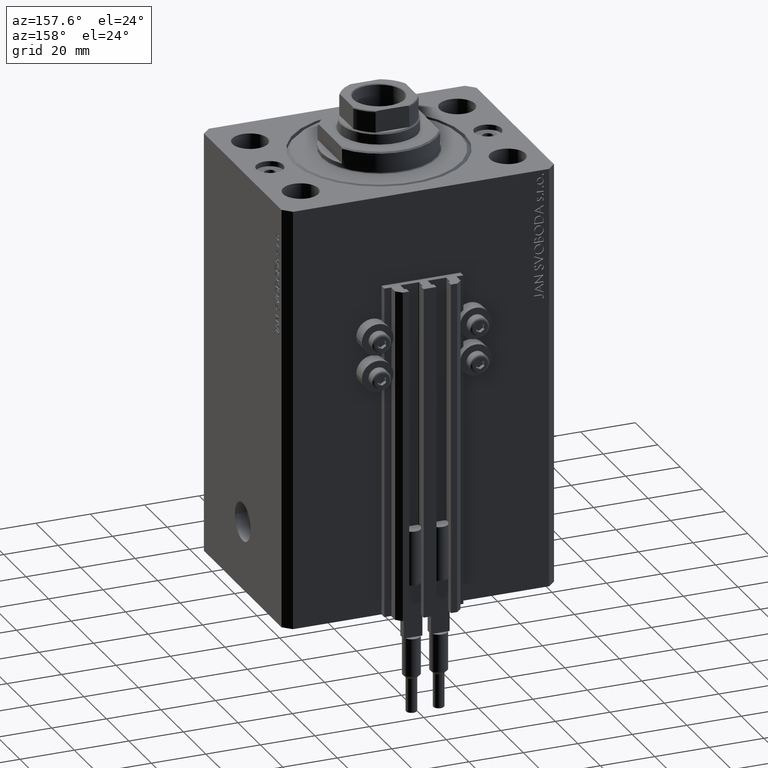
[diagram: clean part render]
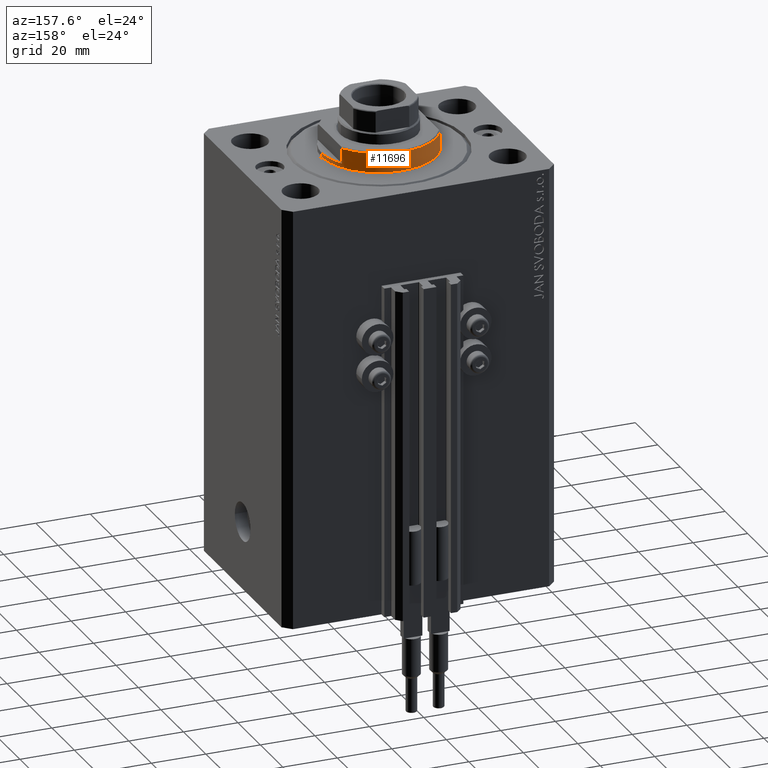
[diagram: same view with one face highlighted and labeled with its STEP entity id]
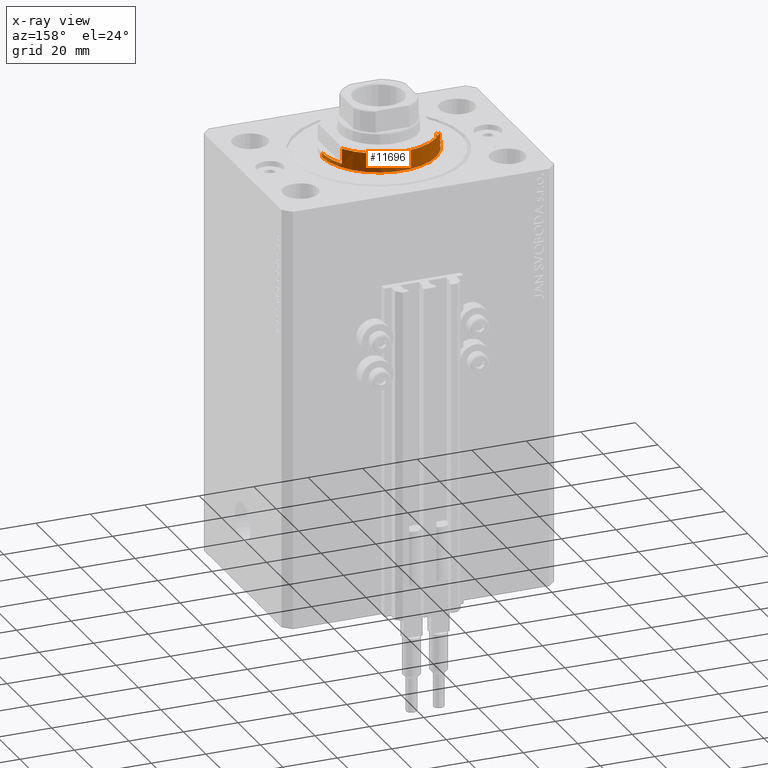
[diagram: x-ray of the same camera — body ghosted, the highlighted face saturated]
A machine part, auxiliary view. The second image highlights one B-rep face of the part: STEP entity #11696.
The next image is the same camera in x-ray: the body ghosted, the highlighted face saturated — about 0% of this face is hidden behind the body in this view.
In plain terms, the highlighted cylindrical surface (partial cylindrical patch) has radius 21 mm, axis along (0, 0, -1).
Its self-contained STEP definition (entity closure, byte-faithful):
#321 = CARTESIAN_POINT ( 'NONE',  ( 0.000000000000000000, 0.000000000000000000, -8.000000000000000000 ) ) ;
#1060 = CARTESIAN_POINT ( 'NONE',  ( 18.00000000000000000, 10.81665382639197048, -7.500000000000016875 ) ) ;
#1626 = DIRECTION ( 'NONE',  ( -0.000000000000000000, -0.000000000000000000, 1.000000000000000000 ) ) ;
#2325 = CARTESIAN_POINT ( 'NONE',  ( 0.000000000000000000, 0.000000000000000000, -0.5000000000000004441 ) ) ;
#3965 = CYLINDRICAL_SURFACE ( 'NONE', #34817, 21.00000000000000000 ) ;
#4092 = ORIENTED_EDGE ( 'NONE', *, *, #46191, .F. ) ;
#4997 = EDGE_LOOP ( 'NONE', ( #4092, #22501, #36168, #43545, #24762, #39017, #35849, #15582 ) ) ;
#5216 = CARTESIAN_POINT ( 'NONE',  ( 21.00000000000000000, 0.000000000000000000, -0.5000000000000004441 ) ) ;
#5282 = DIRECTION ( 'NONE',  ( 0.000000000000000000, 0.000000000000000000, -1.000000000000000000 ) ) ;
#5523 = DIRECTION ( 'NONE',  ( -1.000000000000000000, 0.000000000000000000, 0.000000000000000000 ) ) ;
#6102 = VERTEX_POINT ( 'NONE', #23396 ) ;
#6117 = VECTOR ( 'NONE', #17261, 1000.000000000000000 ) ;
#6345 = CARTESIAN_POINT ( 'NONE',  ( 21.00000000000000000, 0.000000000000000000, -8.000000000000000000 ) ) ;
#6857 = EDGE_CURVE ( 'NONE', #6102, #18162, #45355, .T. ) ;
#7154 = AXIS2_PLACEMENT_3D ( 'NONE', #31983, #46836, #40228 ) ;
#7536 = CARTESIAN_POINT ( 'NONE',  ( 18.00000000000000000, 10.81665382639197048, -8.000000000000000000 ) ) ;
#9226 = VERTEX_POINT ( 'NONE', #5216 ) ;
#9516 = LINE ( 'NONE', #6345, #6117 ) ;
#9731 = EDGE_CURVE ( 'NONE', #42865, #36489, #35502, .T. ) ;
#11696 = ADVANCED_FACE ( 'NONE', ( #37207 ), #3965, .T. ) ;
#12064 = CARTESIAN_POINT ( 'NONE',  ( -21.00000000000000000, 2.571758278209441661E-15, -8.000000000000000000 ) ) ;
#12981 = DIRECTION ( 'NONE',  ( 0.000000000000000000, 0.000000000000000000, 1.000000000000000000 ) ) ;
#15029 = EDGE_CURVE ( 'NONE', #34394, #27529, #16772, .T. ) ;
#15110 = DIRECTION ( 'NONE',  ( -0.000000000000000000, -0.000000000000000000, 1.000000000000000000 ) ) ;
#15582 = ORIENTED_EDGE ( 'NONE', *, *, #15029, .T. ) ;
#16564 = DIRECTION ( 'NONE',  ( 1.000000000000000000, 0.000000000000000000, 0.000000000000000000 ) ) ;
#16772 = LINE ( 'NONE', #42550, #37901 ) ;
#17261 = DIRECTION ( 'NONE',  ( -0.000000000000000000, -0.000000000000000000, 1.000000000000000000 ) ) ;
#17374 = CARTESIAN_POINT ( 'NONE',  ( 0.000000000000000000, 0.000000000000000000, -2.000000000000000000 ) ) ;
#17829 = EDGE_CURVE ( 'NONE', #18162, #9226, #31830, .T. ) ;
#18162 = VERTEX_POINT ( 'NONE', #28186 ) ;
#18208 = EDGE_CURVE ( 'NONE', #18801, #42865, #40800, .T. ) ;
#18801 = VERTEX_POINT ( 'NONE', #1060 ) ;
#19175 = DIRECTION ( 'NONE',  ( -0.000000000000000000, -0.000000000000000000, 1.000000000000000000 ) ) ;
#22501 = ORIENTED_EDGE ( 'NONE', *, *, #6857, .T. ) ;
#23396 = CARTESIAN_POINT ( 'NONE',  ( -21.00000000000000000, 2.571758278209441661E-15, -2.000000000000000000 ) ) ;
#24185 = CARTESIAN_POINT ( 'NONE',  ( -18.00000000000000000, 10.81665382639197048, -7.500000000000016875 ) ) ;
#24324 = VECTOR ( 'NONE', #19175, 1000.000000000000000 ) ;
#24762 = ORIENTED_EDGE ( 'NONE', *, *, #9731, .F. ) ;
#25395 = AXIS2_PLACEMENT_3D ( 'NONE', #17374, #5282, #5523 ) ;
#26207 = EDGE_CURVE ( 'NONE', #36489, #9226, #9516, .T. ) ;
#27032 = AXIS2_PLACEMENT_3D ( 'NONE', #43593, #12981, #27795 ) ;
#27331 = CIRCLE ( 'NONE', #7154, 21.00000000000000000 ) ;
#27529 = VERTEX_POINT ( 'NONE', #44659 ) ;
#27795 = DIRECTION ( 'NONE',  ( -1.000000000000000000, 0.000000000000000000, 0.000000000000000000 ) ) ;
#28186 = CARTESIAN_POINT ( 'NONE',  ( -21.00000000000000000, 2.571758278209441661E-15, -0.5000000000000004441 ) ) ;
#31830 = CIRCLE ( 'NONE', #43513, 21.00000000000000000 ) ;
#31926 = DIRECTION ( 'NONE',  ( -0.000000000000000000, -0.000000000000000000, -1.000000000000000000 ) ) ;
#31983 = CARTESIAN_POINT ( 'NONE',  ( 0.000000000000000000, 0.000000000000000000, -2.000000000000000000 ) ) ;
#32780 = EDGE_CURVE ( 'NONE', #18801, #34394, #33997, .T. ) ;
#33997 = CIRCLE ( 'NONE', #27032, 21.00000000000000000 ) ;
#34394 = VERTEX_POINT ( 'NONE', #24185 ) ;
#34817 = AXIS2_PLACEMENT_3D ( 'NONE', #321, #15110, #16564 ) ;
#35502 = CIRCLE ( 'NONE', #25395, 21.00000000000000000 ) ;
#35849 = ORIENTED_EDGE ( 'NONE', *, *, #32780, .T. ) ;
#36168 = ORIENTED_EDGE ( 'NONE', *, *, #17829, .T. ) ;
#36489 = VERTEX_POINT ( 'NONE', #46023 ) ;
#37207 = FACE_OUTER_BOUND ( 'NONE', #4997, .T. ) ;
#37901 = VECTOR ( 'NONE', #41839, 1000.000000000000000 ) ;
#39017 = ORIENTED_EDGE ( 'NONE', *, *, #18208, .F. ) ;
#40228 = DIRECTION ( 'NONE',  ( -1.000000000000000000, 0.000000000000000000, 0.000000000000000000 ) ) ;
#40800 = LINE ( 'NONE', #7536, #24324 ) ;
#41682 = CARTESIAN_POINT ( 'NONE',  ( 18.00000000000000000, 10.81665382639197048, -2.000000000000000000 ) ) ;
#41839 = DIRECTION ( 'NONE',  ( -0.000000000000000000, -0.000000000000000000, 1.000000000000000000 ) ) ;
#42550 = CARTESIAN_POINT ( 'NONE',  ( -18.00000000000000000, 10.81665382639197048, -8.000000000000000000 ) ) ;
#42865 = VERTEX_POINT ( 'NONE', #41682 ) ;
#43513 = AXIS2_PLACEMENT_3D ( 'NONE', #2325, #31926, #47259 ) ;
#43545 = ORIENTED_EDGE ( 'NONE', *, *, #26207, .F. ) ;
#43593 = CARTESIAN_POINT ( 'NONE',  ( 0.000000000000000000, 0.000000000000000000, -7.500000000000016875 ) ) ;
#44659 = CARTESIAN_POINT ( 'NONE',  ( -18.00000000000000000, 10.81665382639197048, -2.000000000000000000 ) ) ;
#45355 = LINE ( 'NONE', #12064, #47823 ) ;
#46023 = CARTESIAN_POINT ( 'NONE',  ( 21.00000000000000000, 0.000000000000000000, -2.000000000000000000 ) ) ;
#46191 = EDGE_CURVE ( 'NONE', #6102, #27529, #27331, .T. ) ;
#46836 = DIRECTION ( 'NONE',  ( 0.000000000000000000, 0.000000000000000000, -1.000000000000000000 ) ) ;
#47259 = DIRECTION ( 'NONE',  ( 1.000000000000000000, 0.000000000000000000, 0.000000000000000000 ) ) ;
#47823 = VECTOR ( 'NONE', #1626, 1000.000000000000000 ) ;